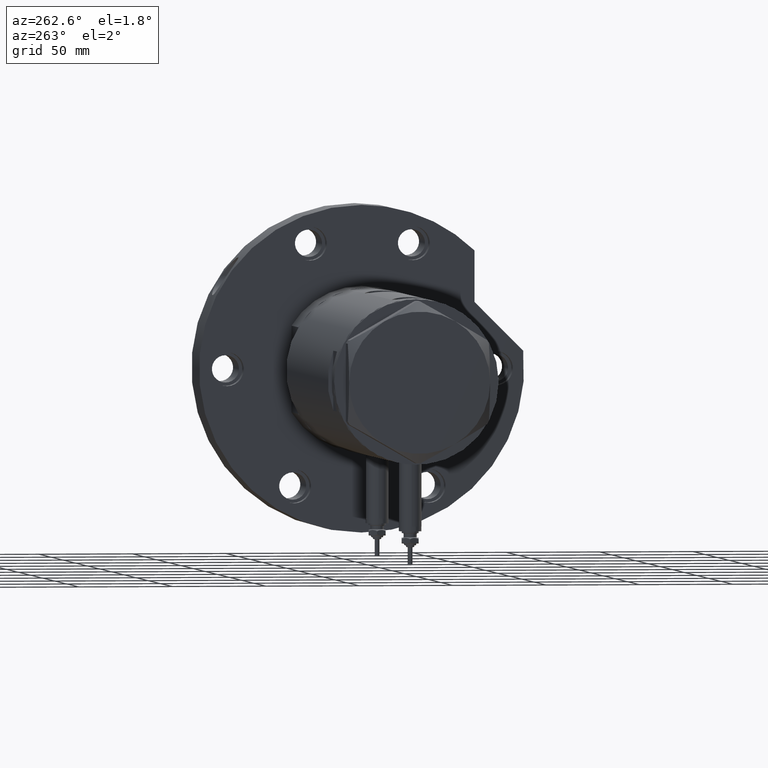
[diagram: clean part render]
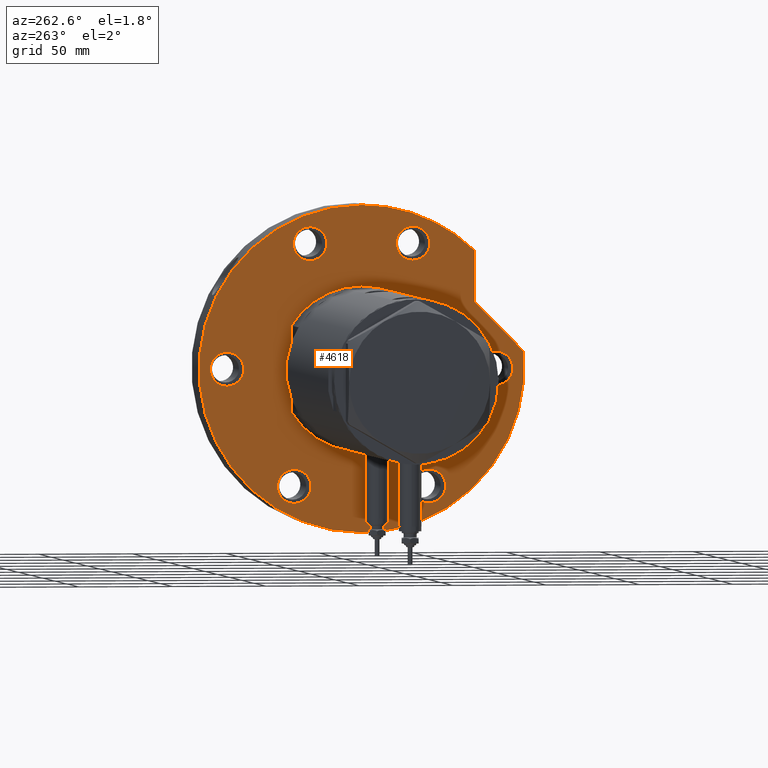
[diagram: same view with one face highlighted and labeled with its STEP entity id]
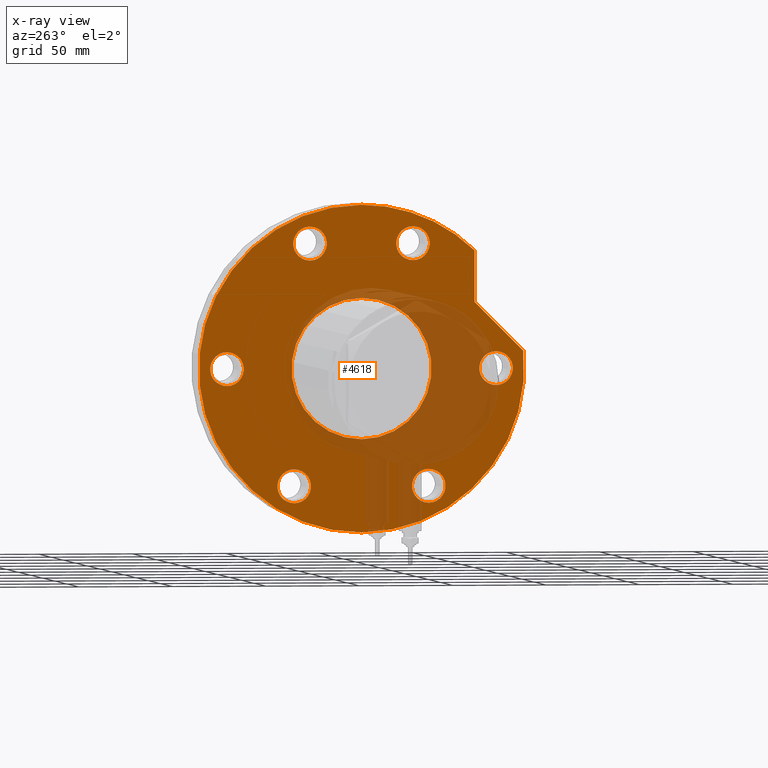
[diagram: x-ray of the same camera — body ghosted, the highlighted face saturated]
A machine part, auxiliary view. The second image highlights one B-rep face of the part: STEP entity #4618.
The next image is the same camera in x-ray: the body ghosted, the highlighted face saturated — about 26% of this face is hidden behind the body in this view.
In plain terms, the highlighted planar face has unit normal (1, 0, -0).
Its self-contained STEP definition (entity closure, byte-faithful):
#79 = CARTESIAN_POINT ( 'NONE',  ( 0.000000000000000000, 72.00000000000000000, 0.000000000000000000 ) ) ;
#109 = DIRECTION ( 'NONE',  ( 0.000000000000000000, 0.000000000000000000, -1.000000000000000000 ) ) ;
#113 = DIRECTION ( 'NONE',  ( 0.000000000000000000, 0.000000000000000000, 1.000000000000000000 ) ) ;
#124 = AXIS2_PLACEMENT_3D ( 'NONE', #3078, #5420, #2072 ) ;
#130 = EDGE_CURVE ( 'NONE', #1560, #3794, #4412, .T. ) ;
#182 = CARTESIAN_POINT ( 'NONE',  ( 66.51932634081252615, -27.55320713028675073, 0.000000000000000000 ) ) ;
#239 = CIRCLE ( 'NONE', #838, 9.000000000000001776 ) ;
#255 = CARTESIAN_POINT ( 'NONE',  ( 57.51932634081251905, 27.55320713028675073, 0.000000000000000000 ) ) ;
#307 = CIRCLE ( 'NONE', #3465, 8.999999999999998224 ) ;
#399 = DIRECTION ( 'NONE',  ( 0.000000000000000000, 0.000000000000000000, 1.000000000000000000 ) ) ;
#416 = EDGE_LOOP ( 'NONE', ( #2222, #6381 ) ) ;
#439 = ORIENTED_EDGE ( 'NONE', *, *, #5238, .F. ) ;
#451 = CARTESIAN_POINT ( 'NONE',  ( 0.000000000000000000, 0.000000000000000000, 0.000000000000000000 ) ) ;
#481 = AXIS2_PLACEMENT_3D ( 'NONE', #7545, #5865, #3451 ) ;
#485 = DIRECTION ( 'NONE',  ( -1.000000000000000000, 0.000000000000000000, 0.000000000000000000 ) ) ;
#595 = ORIENTED_EDGE ( 'NONE', *, *, #5585, .F. ) ;
#620 = DIRECTION ( 'NONE',  ( -1.000000000000000000, 0.000000000000000000, 0.000000000000000000 ) ) ;
#686 = CARTESIAN_POINT ( 'NONE',  ( 0.000000000000000000, 0.000000000000000000, 0.000000000000000000 ) ) ;
#836 = CARTESIAN_POINT ( 'NONE',  ( 75.51932634081252615, 27.55320713028675073, 0.000000000000000000 ) ) ;
#838 = AXIS2_PLACEMENT_3D ( 'NONE', #1355, #7166, #3679 ) ;
#877 = CARTESIAN_POINT ( 'NONE',  ( 0.000000000000000000, 0.000000000000000000, 0.000000000000000000 ) ) ;
#879 = CIRCLE ( 'NONE', #2467, 9.000000000000001776 ) ;
#997 = AXIS2_PLACEMENT_3D ( 'NONE', #877, #2558, #6654 ) ;
#1015 = AXIS2_PLACEMENT_3D ( 'NONE', #2256, #1108, #620 ) ;
#1017 = FACE_BOUND ( 'NONE', #5414, .T. ) ;
#1021 = VERTEX_POINT ( 'NONE', #2476 ) ;
#1040 = AXIS2_PLACEMENT_3D ( 'NONE', #3942, #6277, #1198 ) ;
#1056 = VERTEX_POINT ( 'NONE', #2970 ) ;
#1062 = EDGE_CURVE ( 'NONE', #2808, #1692, #2361, .T. ) ;
#1108 = DIRECTION ( 'NONE',  ( 0.000000000000000000, 0.000000000000000000, -1.000000000000000000 ) ) ;
#1116 = CARTESIAN_POINT ( 'NONE',  ( 35.23236590573035443, 60.47687547247904405, 0.000000000000000000 ) ) ;
#1138 = EDGE_CURVE ( 'NONE', #1692, #6031, #1474, .T. ) ;
#1182 = DIRECTION ( 'NONE',  ( 0.000000000000000000, 0.000000000000000000, -1.000000000000000000 ) ) ;
#1198 = DIRECTION ( 'NONE',  ( 1.000000000000000000, 0.000000000000000000, 0.000000000000000000 ) ) ;
#1218 = CIRCLE ( 'NONE', #6209, 9.000000000000001776 ) ;
#1239 = VECTOR ( 'NONE', #7066, 999.9999999999998863 ) ;
#1246 = AXIS2_PLACEMENT_3D ( 'NONE', #3557, #5211, #5940 ) ;
#1266 = DIRECTION ( 'NONE',  ( 0.000000000000000000, 0.000000000000000000, -1.000000000000000000 ) ) ;
#1308 = CARTESIAN_POINT ( 'NONE',  ( 8.999999999999998224, 72.00000000000000000, 0.000000000000000000 ) ) ;
#1320 = ORIENTED_EDGE ( 'NONE', *, *, #3249, .F. ) ;
#1355 = CARTESIAN_POINT ( 'NONE',  ( -62.35382907247965534, 35.99999999999985079, 0.000000000000000000 ) ) ;
#1463 = ORIENTED_EDGE ( 'NONE', *, *, #7367, .F. ) ;
#1474 = LINE ( 'NONE', #2650, #4907 ) ;
#1534 = ORIENTED_EDGE ( 'NONE', *, *, #2514, .F. ) ;
#1560 = VERTEX_POINT ( 'NONE', #2643 ) ;
#1572 = CARTESIAN_POINT ( 'NONE',  ( 62.54236590573034249, 60.47687547247904405, 0.000000000000000000 ) ) ;
#1580 = ORIENTED_EDGE ( 'NONE', *, *, #6187, .F. ) ;
#1581 = DIRECTION ( 'NONE',  ( 0.000000000000000000, 0.000000000000000000, 1.000000000000000000 ) ) ;
#1686 = CIRCLE ( 'NONE', #481, 9.000000000000001776 ) ;
#1692 = VERTEX_POINT ( 'NONE', #1116 ) ;
#1697 = CIRCLE ( 'NONE', #124, 37.50000000000000711 ) ;
#1764 = EDGE_CURVE ( 'NONE', #1021, #7355, #879, .T. ) ;
#1789 = DIRECTION ( 'NONE',  ( -1.000000000000000000, 0.000000000000000000, 0.000000000000000000 ) ) ;
#1901 = CARTESIAN_POINT ( 'NONE',  ( 87.00000000000000000, 1.065442715258197209E-14, 0.000000000000000000 ) ) ;
#1902 = CARTESIAN_POINT ( 'NONE',  ( 35.23236590573035443, 60.47687547247904405, 0.000000000000000000 ) ) ;
#1903 = EDGE_CURVE ( 'NONE', #2808, #2157, #2218, .T. ) ;
#1953 = ORIENTED_EDGE ( 'NONE', *, *, #6435, .F. ) ;
#2033 = VERTEX_POINT ( 'NONE', #2363 ) ;
#2072 = DIRECTION ( 'NONE',  ( 1.000000000000000000, 0.000000000000000000, 0.000000000000000000 ) ) ;
#2078 = DIRECTION ( 'NONE',  ( 1.000000000000000000, 0.000000000000000000, -0.000000000000000000 ) ) ;
#2157 = VERTEX_POINT ( 'NONE', #6840 ) ;
#2218 = CIRCLE ( 'NONE', #997, 87.00000000000000000 ) ;
#2222 = ORIENTED_EDGE ( 'NONE', *, *, #6528, .T. ) ;
#2228 = VERTEX_POINT ( 'NONE', #5653 ) ;
#2256 = CARTESIAN_POINT ( 'NONE',  ( 0.000000000000000000, -72.00000000000000000, 0.000000000000000000 ) ) ;
#2257 = ORIENTED_EDGE ( 'NONE', *, *, #1138, .T. ) ;
#2361 = LINE ( 'NONE', #1902, #1239 ) ;
#2363 = CARTESIAN_POINT ( 'NONE',  ( -53.35382907247965534, 35.99999999999985079, 0.000000000000000000 ) ) ;
#2418 = CIRCLE ( 'NONE', #4869, 9.000000000000001776 ) ;
#2467 = AXIS2_PLACEMENT_3D ( 'NONE', #3705, #1266, #5284 ) ;
#2476 = CARTESIAN_POINT ( 'NONE',  ( -53.35382907247941375, -36.00000000000027711, 0.000000000000000000 ) ) ;
#2514 = EDGE_CURVE ( 'NONE', #7355, #1021, #3926, .T. ) ;
#2543 = AXIS2_PLACEMENT_3D ( 'NONE', #6088, #399, #4400 ) ;
#2558 = DIRECTION ( 'NONE',  ( 0.000000000000000000, 0.000000000000000000, 1.000000000000000000 ) ) ;
#2600 = CIRCLE ( 'NONE', #1015, 8.999999999999998224 ) ;
#2643 = CARTESIAN_POINT ( 'NONE',  ( -8.999999999999998224, 72.00000000000000000, 0.000000000000000000 ) ) ;
#2650 = CARTESIAN_POINT ( 'NONE',  ( 35.23236590573035443, 60.47687547247904405, 0.000000000000000000 ) ) ;
#2729 = FACE_BOUND ( 'NONE', #4574, .T. ) ;
#2767 = ORIENTED_EDGE ( 'NONE', *, *, #1764, .F. ) ;
#2808 = VERTEX_POINT ( 'NONE', #3861 ) ;
#2853 = DIRECTION ( 'NONE',  ( -1.000000000000000000, 0.000000000000000000, 0.000000000000000000 ) ) ;
#2910 = VERTEX_POINT ( 'NONE', #7387 ) ;
#2970 = CARTESIAN_POINT ( 'NONE',  ( 37.50000000000000711, 0.000000000000000000, 0.000000000000000000 ) ) ;
#2982 = ORIENTED_EDGE ( 'NONE', *, *, #3393, .F. ) ;
#3035 = ORIENTED_EDGE ( 'NONE', *, *, #1903, .F. ) ;
#3078 = CARTESIAN_POINT ( 'NONE',  ( 0.000000000000000000, 0.000000000000000000, 0.000000000000000000 ) ) ;
#3131 = AXIS2_PLACEMENT_3D ( 'NONE', #686, #113, #5770 ) ;
#3220 = CARTESIAN_POINT ( 'NONE',  ( 0.000000000000000000, -72.00000000000000000, 0.000000000000000000 ) ) ;
#3249 = EDGE_CURVE ( 'NONE', #7028, #3569, #5650, .T. ) ;
#3253 = CARTESIAN_POINT ( 'NONE',  ( -71.35382907247941375, -36.00000000000027711, 0.000000000000000000 ) ) ;
#3301 = ORIENTED_EDGE ( 'NONE', *, *, #4442, .F. ) ;
#3318 = DIRECTION ( 'NONE',  ( 0.000000000000000000, 0.000000000000000000, -1.000000000000000000 ) ) ;
#3349 = CARTESIAN_POINT ( 'NONE',  ( 57.51932634081251905, -27.55320713028675073, 0.000000000000000000 ) ) ;
#3362 = VERTEX_POINT ( 'NONE', #5732 ) ;
#3393 = EDGE_CURVE ( 'NONE', #5304, #7543, #2600, .T. ) ;
#3396 = ORIENTED_EDGE ( 'NONE', *, *, #7108, .F. ) ;
#3422 = CARTESIAN_POINT ( 'NONE',  ( 66.51932634081252615, -27.55320713028675073, 0.000000000000000000 ) ) ;
#3451 = DIRECTION ( 'NONE',  ( -1.000000000000000000, 0.000000000000000000, 0.000000000000000000 ) ) ;
#3465 = AXIS2_PLACEMENT_3D ( 'NONE', #79, #1182, #1789 ) ;
#3470 = CIRCLE ( 'NONE', #3591, 9.000000000000001776 ) ;
#3557 = CARTESIAN_POINT ( 'NONE',  ( 0.000000000000000000, 72.00000000000000000, 0.000000000000000000 ) ) ;
#3569 = VERTEX_POINT ( 'NONE', #836 ) ;
#3591 = AXIS2_PLACEMENT_3D ( 'NONE', #182, #5450, #6598 ) ;
#3600 = CARTESIAN_POINT ( 'NONE',  ( -8.999999999999998224, -72.00000000000000000, 0.000000000000000000 ) ) ;
#3634 = VERTEX_POINT ( 'NONE', #3349 ) ;
#3679 = DIRECTION ( 'NONE',  ( -1.000000000000000000, 0.000000000000000000, 0.000000000000000000 ) ) ;
#3705 = CARTESIAN_POINT ( 'NONE',  ( -62.35382907247942086, -36.00000000000027711, 0.000000000000000000 ) ) ;
#3741 = CIRCLE ( 'NONE', #3131, 87.00000000000000000 ) ;
#3794 = VERTEX_POINT ( 'NONE', #1308 ) ;
#3861 = CARTESIAN_POINT ( 'NONE',  ( 9.196694222441541555, 86.51254715576759224, 0.000000000000000000 ) ) ;
#3867 = CARTESIAN_POINT ( 'NONE',  ( -62.35382907247942086, -36.00000000000027711, 0.000000000000000000 ) ) ;
#3885 = AXIS2_PLACEMENT_3D ( 'NONE', #3220, #6132, #485 ) ;
#3910 = FACE_OUTER_BOUND ( 'NONE', #6710, .T. ) ;
#3926 = CIRCLE ( 'NONE', #5401, 9.000000000000001776 ) ;
#3942 = CARTESIAN_POINT ( 'NONE',  ( 0.000000000000000000, 0.000000000000000000, 0.000000000000000000 ) ) ;
#3946 = CARTESIAN_POINT ( 'NONE',  ( -62.35382907247965534, 35.99999999999985079, 0.000000000000000000 ) ) ;
#4149 = EDGE_LOOP ( 'NONE', ( #1534, #2767 ) ) ;
#4327 = AXIS2_PLACEMENT_3D ( 'NONE', #451, #1581, #2078 ) ;
#4330 = EDGE_LOOP ( 'NONE', ( #2982, #1463 ) ) ;
#4400 = DIRECTION ( 'NONE',  ( 1.000000000000000000, 0.000000000000000000, 0.000000000000000000 ) ) ;
#4412 = CIRCLE ( 'NONE', #1246, 8.999999999999998224 ) ;
#4442 = EDGE_CURVE ( 'NONE', #3794, #1560, #307, .T. ) ;
#4563 = EDGE_LOOP ( 'NONE', ( #3396, #6303 ) ) ;
#4574 = EDGE_LOOP ( 'NONE', ( #7435, #3301 ) ) ;
#4618 = ADVANCED_FACE ( 'NONE', ( #2729, #1017, #6824, #5679, #6205, #6250, #5022, #3910 ), #7434, .F. ) ;
#4799 = ORIENTED_EDGE ( 'NONE', *, *, #6149, .F. ) ;
#4869 = AXIS2_PLACEMENT_3D ( 'NONE', #3946, #6703, #5251 ) ;
#4907 = VECTOR ( 'NONE', #6100, 1000.000000000000000 ) ;
#4915 = EDGE_CURVE ( 'NONE', #2228, #3634, #3470, .T. ) ;
#4980 = CIRCLE ( 'NONE', #2543, 37.50000000000000711 ) ;
#5022 = FACE_BOUND ( 'NONE', #416, .T. ) ;
#5038 = CARTESIAN_POINT ( 'NONE',  ( 66.51932634081252615, 27.55320713028675073, 0.000000000000000000 ) ) ;
#5176 = EDGE_LOOP ( 'NONE', ( #4799, #1953 ) ) ;
#5211 = DIRECTION ( 'NONE',  ( 0.000000000000000000, 0.000000000000000000, -1.000000000000000000 ) ) ;
#5238 = EDGE_CURVE ( 'NONE', #5697, #6031, #5927, .T. ) ;
#5251 = DIRECTION ( 'NONE',  ( -1.000000000000000000, 0.000000000000000000, 0.000000000000000000 ) ) ;
#5284 = DIRECTION ( 'NONE',  ( -1.000000000000000000, 0.000000000000000000, 0.000000000000000000 ) ) ;
#5304 = VERTEX_POINT ( 'NONE', #3600 ) ;
#5330 = CARTESIAN_POINT ( 'NONE',  ( 8.999999999999998224, -72.00000000000000000, 0.000000000000000000 ) ) ;
#5401 = AXIS2_PLACEMENT_3D ( 'NONE', #3867, #6201, #5674 ) ;
#5414 = EDGE_LOOP ( 'NONE', ( #1320, #1580 ) ) ;
#5420 = DIRECTION ( 'NONE',  ( 0.000000000000000000, 0.000000000000000000, 1.000000000000000000 ) ) ;
#5450 = DIRECTION ( 'NONE',  ( 0.000000000000000000, 0.000000000000000000, -1.000000000000000000 ) ) ;
#5577 = DIRECTION ( 'NONE',  ( -1.000000000000000000, 0.000000000000000000, 0.000000000000000000 ) ) ;
#5585 = EDGE_CURVE ( 'NONE', #2157, #5697, #3741, .T. ) ;
#5650 = CIRCLE ( 'NONE', #7357, 9.000000000000001776 ) ;
#5653 = CARTESIAN_POINT ( 'NONE',  ( 75.51932634081252615, -27.55320713028675073, 0.000000000000000000 ) ) ;
#5674 = DIRECTION ( 'NONE',  ( -1.000000000000000000, 0.000000000000000000, 0.000000000000000000 ) ) ;
#5679 = FACE_BOUND ( 'NONE', #4330, .T. ) ;
#5697 = VERTEX_POINT ( 'NONE', #1901 ) ;
#5732 = CARTESIAN_POINT ( 'NONE',  ( -37.50000000000000711, 4.592425496802575156E-15, 0.000000000000000000 ) ) ;
#5770 = DIRECTION ( 'NONE',  ( 1.000000000000000000, 0.000000000000000000, 0.000000000000000000 ) ) ;
#5865 = DIRECTION ( 'NONE',  ( 0.000000000000000000, 0.000000000000000000, -1.000000000000000000 ) ) ;
#5927 = CIRCLE ( 'NONE', #1040, 87.00000000000000000 ) ;
#5940 = DIRECTION ( 'NONE',  ( -1.000000000000000000, 0.000000000000000000, 0.000000000000000000 ) ) ;
#6031 = VERTEX_POINT ( 'NONE', #1572 ) ;
#6088 = CARTESIAN_POINT ( 'NONE',  ( 0.000000000000000000, 0.000000000000000000, 0.000000000000000000 ) ) ;
#6100 = DIRECTION ( 'NONE',  ( 1.000000000000000000, 0.000000000000000000, 0.000000000000000000 ) ) ;
#6132 = DIRECTION ( 'NONE',  ( 0.000000000000000000, 0.000000000000000000, -1.000000000000000000 ) ) ;
#6149 = EDGE_CURVE ( 'NONE', #2910, #2033, #2418, .T. ) ;
#6187 = EDGE_CURVE ( 'NONE', #3569, #7028, #1686, .T. ) ;
#6201 = DIRECTION ( 'NONE',  ( 0.000000000000000000, 0.000000000000000000, -1.000000000000000000 ) ) ;
#6205 = FACE_BOUND ( 'NONE', #4149, .T. ) ;
#6209 = AXIS2_PLACEMENT_3D ( 'NONE', #3422, #109, #2853 ) ;
#6250 = FACE_BOUND ( 'NONE', #5176, .T. ) ;
#6277 = DIRECTION ( 'NONE',  ( 0.000000000000000000, 0.000000000000000000, 1.000000000000000000 ) ) ;
#6303 = ORIENTED_EDGE ( 'NONE', *, *, #4915, .F. ) ;
#6381 = ORIENTED_EDGE ( 'NONE', *, *, #7307, .T. ) ;
#6403 = ORIENTED_EDGE ( 'NONE', *, *, #1062, .T. ) ;
#6435 = EDGE_CURVE ( 'NONE', #2033, #2910, #239, .T. ) ;
#6528 = EDGE_CURVE ( 'NONE', #1056, #3362, #4980, .T. ) ;
#6598 = DIRECTION ( 'NONE',  ( -1.000000000000000000, 0.000000000000000000, 0.000000000000000000 ) ) ;
#6654 = DIRECTION ( 'NONE',  ( 1.000000000000000000, 0.000000000000000000, 0.000000000000000000 ) ) ;
#6703 = DIRECTION ( 'NONE',  ( 0.000000000000000000, 0.000000000000000000, -1.000000000000000000 ) ) ;
#6710 = EDGE_LOOP ( 'NONE', ( #6403, #2257, #439, #595, #3035 ) ) ;
#6824 = FACE_BOUND ( 'NONE', #4563, .T. ) ;
#6840 = CARTESIAN_POINT ( 'NONE',  ( -87.00000000000000000, 0.000000000000000000, 0.000000000000000000 ) ) ;
#7028 = VERTEX_POINT ( 'NONE', #255 ) ;
#7066 = DIRECTION ( 'NONE',  ( 0.7071067811865511255, -0.7071067811865440200, -0.000000000000000000 ) ) ;
#7108 = EDGE_CURVE ( 'NONE', #3634, #2228, #1218, .T. ) ;
#7166 = DIRECTION ( 'NONE',  ( 0.000000000000000000, 0.000000000000000000, -1.000000000000000000 ) ) ;
#7198 = CIRCLE ( 'NONE', #3885, 8.999999999999998224 ) ;
#7307 = EDGE_CURVE ( 'NONE', #3362, #1056, #1697, .T. ) ;
#7355 = VERTEX_POINT ( 'NONE', #3253 ) ;
#7357 = AXIS2_PLACEMENT_3D ( 'NONE', #5038, #3318, #5577 ) ;
#7367 = EDGE_CURVE ( 'NONE', #7543, #5304, #7198, .T. ) ;
#7387 = CARTESIAN_POINT ( 'NONE',  ( -71.35382907247965534, 35.99999999999985079, 0.000000000000000000 ) ) ;
#7434 = PLANE ( 'NONE',  #4327 ) ;
#7435 = ORIENTED_EDGE ( 'NONE', *, *, #130, .F. ) ;
#7543 = VERTEX_POINT ( 'NONE', #5330 ) ;
#7545 = CARTESIAN_POINT ( 'NONE',  ( 66.51932634081252615, 27.55320713028675073, 0.000000000000000000 ) ) ;